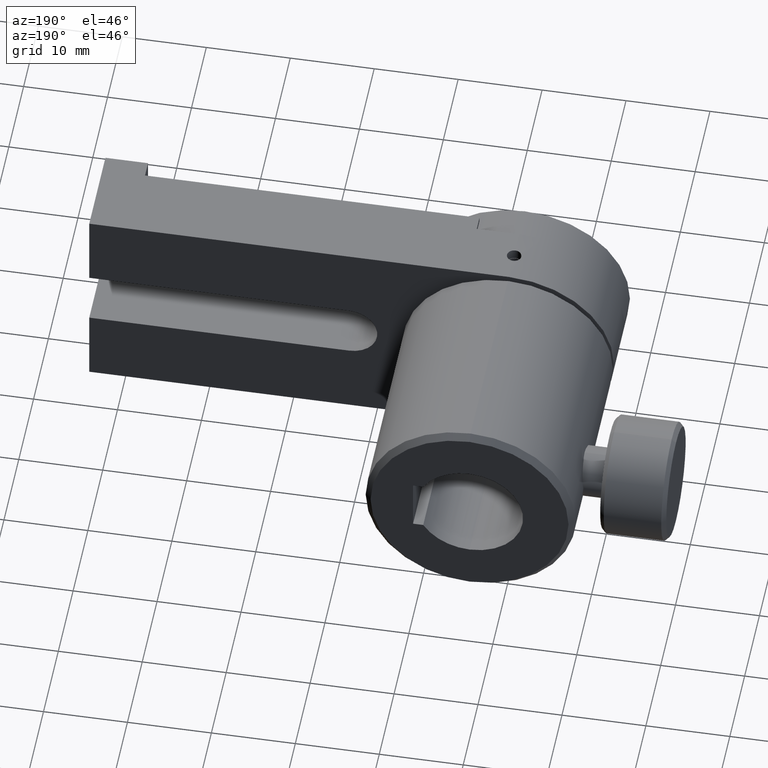
[diagram: clean part render]
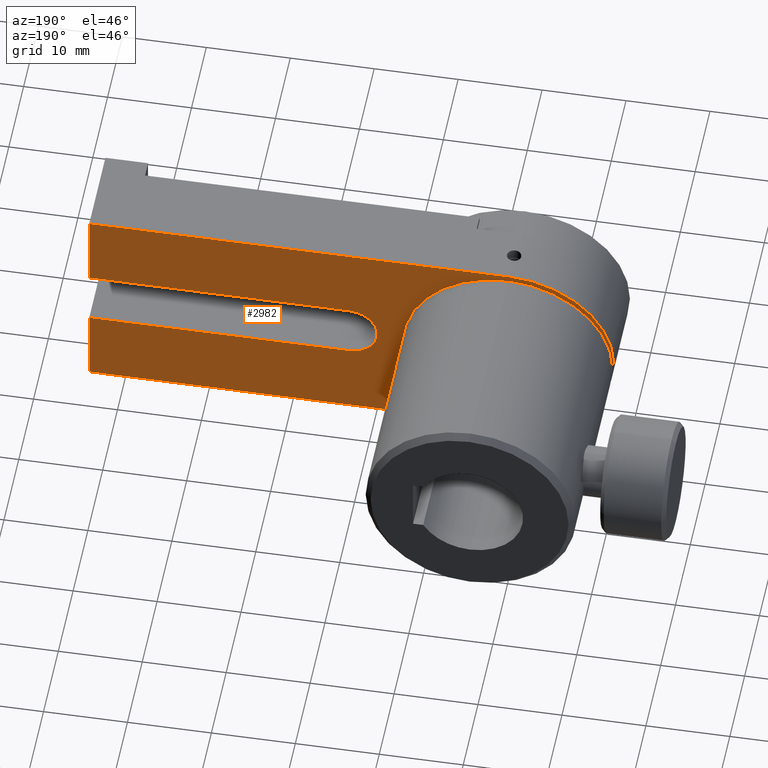
[diagram: same view with one face highlighted and labeled with its STEP entity id]
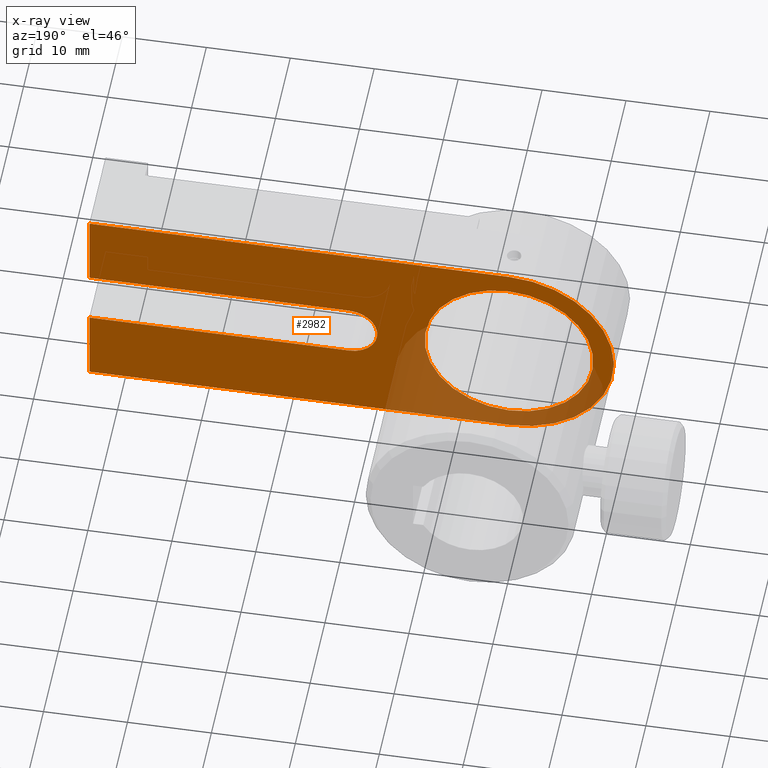
[diagram: x-ray of the same camera — body ghosted, the highlighted face saturated]
A machine part, auxiliary view. The second image highlights one B-rep face of the part: STEP entity #2982.
The next image is the same camera in x-ray: the body ghosted, the highlighted face saturated — about 14% of this face is hidden behind the body in this view.
In plain terms, the highlighted planar face has unit normal (0, 1, -0).
Its self-contained STEP definition (entity closure, byte-faithful):
#20 = CARTESIAN_POINT ( 'NONE',  ( 4.123066643891381700, 5.698134787764893800, 10.04570000000000200 ) ) ;
#56 = VECTOR ( 'NONE', #1828, 1000.000000000000000 ) ;
#83 = ORIENTED_EDGE ( 'NONE', *, *, #2535, .F. ) ;
#85 = EDGE_CURVE ( 'NONE', #808, #389, #2449, .T. ) ;
#138 = DIRECTION ( 'NONE',  ( 0.0000000000000000000, 0.0000000000000000000, -1.000000000000000000 ) ) ;
#173 = EDGE_CURVE ( 'NONE', #174, #184, #1068, .T. ) ;
#174 = VERTEX_POINT ( 'NONE', #717 ) ;
#184 = VERTEX_POINT ( 'NONE', #2131 ) ;
#185 = AXIS2_PLACEMENT_3D ( 'NONE', #358, #324, #2571 ) ;
#219 = VECTOR ( 'NONE', #138, 1000.000000000000000 ) ;
#251 = CARTESIAN_POINT ( 'NONE',  ( 23.17306664389137800, 5.698134787764893800, -3.365499999999999900 ) ) ;
#254 = DIRECTION ( 'NONE',  ( 0.0000000000000000000, 1.000000000000000000, -0.0000000000000000000 ) ) ;
#305 = CIRCLE ( 'NONE', #1076, 10.04570000000000200 ) ;
#324 = DIRECTION ( 'NONE',  ( 0.0000000000000000000, 1.000000000000000000, -0.0000000000000000000 ) ) ;
#358 = CARTESIAN_POINT ( 'NONE',  ( -29.62103515794081700, 5.698134787764893800, 8.999471541716452500E-015 ) ) ;
#368 = DIRECTION ( 'NONE',  ( 1.000000000000000000, -0.0000000000000000000, 0.0000000000000000000 ) ) ;
#371 = CARTESIAN_POINT ( 'NONE',  ( 4.123066643891380800, 5.698134787764893800, -10.04570000000000200 ) ) ;
#389 = VERTEX_POINT ( 'NONE', #1669 ) ;
#410 = CARTESIAN_POINT ( 'NONE',  ( -29.62103515794081700, 5.698134787764893800, 12.49679999999999900 ) ) ;
#413 = DIRECTION ( 'NONE',  ( -1.000000000000000000, 0.0000000000000000000, 7.006152972442677000E-017 ) ) ;
#555 = DIRECTION ( 'NONE',  ( 0.0000000000000000000, 0.0000000000000000000, 1.000000000000000000 ) ) ;
#613 = DIRECTION ( 'NONE',  ( -1.000000000000000000, 0.0000000000000000000, 1.261107535039681900E-016 ) ) ;
#657 = DIRECTION ( 'NONE',  ( 0.0000000000000000000, 1.000000000000000000, -0.0000000000000000000 ) ) ;
#664 = CIRCLE ( 'NONE', #2744, 10.04570000000000200 ) ;
#717 = CARTESIAN_POINT ( 'NONE',  ( 54.12306664389138400, 5.698134787764893800, 3.365500000000003900 ) ) ;
#739 = FACE_BOUND ( 'NONE', #1111, .T. ) ;
#759 = VERTEX_POINT ( 'NONE', #2093 ) ;
#771 = EDGE_CURVE ( 'NONE', #2493, #2410, #664, .T. ) ;
#798 = ORIENTED_EDGE ( 'NONE', *, *, #1251, .F. ) ;
#808 = VERTEX_POINT ( 'NONE', #2124 ) ;
#918 = VECTOR ( 'NONE', #368, 1000.000000000000000 ) ;
#950 = CARTESIAN_POINT ( 'NONE',  ( 4.123066643891380800, 5.698134787764893800, 0.0000000000000000000 ) ) ;
#987 = CARTESIAN_POINT ( 'NONE',  ( 4.123066643891380800, 5.698134787764893800, 0.0000000000000000000 ) ) ;
#1059 = ORIENTED_EDGE ( 'NONE', *, *, #85, .F. ) ;
#1068 = LINE ( 'NONE', #3509, #2569 ) ;
#1076 = AXIS2_PLACEMENT_3D ( 'NONE', #2520, #254, #555 ) ;
#1099 = LINE ( 'NONE', #410, #56 ) ;
#1111 = EDGE_LOOP ( 'NONE', ( #2996, #3527 ) ) ;
#1170 = CARTESIAN_POINT ( 'NONE',  ( 54.12306664389138400, 5.698134787764893800, 12.49679999999999900 ) ) ;
#1228 = CARTESIAN_POINT ( 'NONE',  ( 54.12306664389138400, 5.698134787764893800, 8.999471541716452500E-015 ) ) ;
#1251 = EDGE_CURVE ( 'NONE', #389, #1267, #1951, .T. ) ;
#1255 = VERTEX_POINT ( 'NONE', #3068 ) ;
#1267 = VERTEX_POINT ( 'NONE', #251 ) ;
#1297 = DIRECTION ( 'NONE',  ( 0.0000000000000000000, 1.000000000000000000, -0.0000000000000000000 ) ) ;
#1302 = CIRCLE ( 'NONE', #3172, 12.49679999999999900 ) ;
#1389 = DIRECTION ( 'NONE',  ( 0.0000000000000000000, 1.000000000000000000, -0.0000000000000000000 ) ) ;
#1421 = DIRECTION ( 'NONE',  ( 0.0000000000000000000, 0.0000000000000000000, 1.000000000000000000 ) ) ;
#1434 = EDGE_CURVE ( 'NONE', #1255, #2172, #1099, .T. ) ;
#1460 = PLANE ( 'NONE',  #185 ) ;
#1481 = AXIS2_PLACEMENT_3D ( 'NONE', #2142, #1389, #2831 ) ;
#1669 = CARTESIAN_POINT ( 'NONE',  ( 54.12306664389138400, 5.698134787764893800, -3.365500000000003900 ) ) ;
#1678 = LINE ( 'NONE', #2116, #918 ) ;
#1702 = ORIENTED_EDGE ( 'NONE', *, *, #1735, .F. ) ;
#1735 = EDGE_CURVE ( 'NONE', #759, #808, #1678, .T. ) ;
#1828 = DIRECTION ( 'NONE',  ( 1.000000000000000000, -0.0000000000000000000, 0.0000000000000000000 ) ) ;
#1923 = EDGE_CURVE ( 'NONE', #2410, #2493, #305, .T. ) ;
#1951 = LINE ( 'NONE', #2862, #2439 ) ;
#1977 = ORIENTED_EDGE ( 'NONE', *, *, #3035, .T. ) ;
#2093 = CARTESIAN_POINT ( 'NONE',  ( 4.123066643891380800, 5.698134787764893800, -12.49679999999999900 ) ) ;
#2116 = CARTESIAN_POINT ( 'NONE',  ( -29.62103515794081700, 5.698134787764893800, -12.49679999999999900 ) ) ;
#2124 = CARTESIAN_POINT ( 'NONE',  ( 54.12306664389138400, 5.698134787764893800, -12.49679999999999900 ) ) ;
#2131 = CARTESIAN_POINT ( 'NONE',  ( 23.17306664389137800, 5.698134787764893800, 3.365500000000006200 ) ) ;
#2142 = CARTESIAN_POINT ( 'NONE',  ( 23.17306664389138500, 5.698134787764893800, 0.0000000000000000000 ) ) ;
#2172 = VERTEX_POINT ( 'NONE', #1170 ) ;
#2250 = FACE_OUTER_BOUND ( 'NONE', #2817, .T. ) ;
#2404 = DIRECTION ( 'NONE',  ( 0.0000000000000000000, 0.0000000000000000000, 1.000000000000000000 ) ) ;
#2410 = VERTEX_POINT ( 'NONE', #20 ) ;
#2439 = VECTOR ( 'NONE', #613, 1000.000000000000000 ) ;
#2449 = LINE ( 'NONE', #3392, #2607 ) ;
#2471 = LINE ( 'NONE', #1228, #219 ) ;
#2493 = VERTEX_POINT ( 'NONE', #371 ) ;
#2520 = CARTESIAN_POINT ( 'NONE',  ( 4.123066643891380800, 5.698134787764893800, 0.0000000000000000000 ) ) ;
#2535 = EDGE_CURVE ( 'NONE', #1267, #184, #3376, .T. ) ;
#2549 = ORIENTED_EDGE ( 'NONE', *, *, #173, .T. ) ;
#2569 = VECTOR ( 'NONE', #413, 1000.000000000000000 ) ;
#2571 = DIRECTION ( 'NONE',  ( 0.0000000000000000000, 0.0000000000000000000, 1.000000000000000000 ) ) ;
#2607 = VECTOR ( 'NONE', #1421, 1000.000000000000000 ) ;
#2625 = DIRECTION ( 'NONE',  ( 0.0000000000000000000, 0.0000000000000000000, 1.000000000000000000 ) ) ;
#2744 = AXIS2_PLACEMENT_3D ( 'NONE', #987, #1297, #2404 ) ;
#2817 = EDGE_LOOP ( 'NONE', ( #3375, #3292, #2549, #83, #798, #1059, #1702, #1977 ) ) ;
#2831 = DIRECTION ( 'NONE',  ( 0.0000000000000000000, 0.0000000000000000000, 1.000000000000000000 ) ) ;
#2862 = CARTESIAN_POINT ( 'NONE',  ( -29.62103515794081700, 5.698134787764893800, -3.365499999999993700 ) ) ;
#2982 = ADVANCED_FACE ( 'NONE', ( #2250, #739 ), #1460, .T. ) ;
#2996 = ORIENTED_EDGE ( 'NONE', *, *, #771, .F. ) ;
#3035 = EDGE_CURVE ( 'NONE', #759, #1255, #1302, .T. ) ;
#3068 = CARTESIAN_POINT ( 'NONE',  ( 4.123066643891380800, 5.698134787764893800, 12.49679999999999900 ) ) ;
#3172 = AXIS2_PLACEMENT_3D ( 'NONE', #950, #657, #2625 ) ;
#3292 = ORIENTED_EDGE ( 'NONE', *, *, #3400, .T. ) ;
#3375 = ORIENTED_EDGE ( 'NONE', *, *, #1434, .T. ) ;
#3376 = CIRCLE ( 'NONE', #1481, 3.365500000000003000 ) ;
#3392 = CARTESIAN_POINT ( 'NONE',  ( 54.12306664389138400, 5.698134787764893800, 8.999471541716452500E-015 ) ) ;
#3400 = EDGE_CURVE ( 'NONE', #2172, #174, #2471, .T. ) ;
#3509 = CARTESIAN_POINT ( 'NONE',  ( -29.62103515794081700, 5.698134787764893800, 3.365500000000010200 ) ) ;
#3527 = ORIENTED_EDGE ( 'NONE', *, *, #1923, .F. ) ;